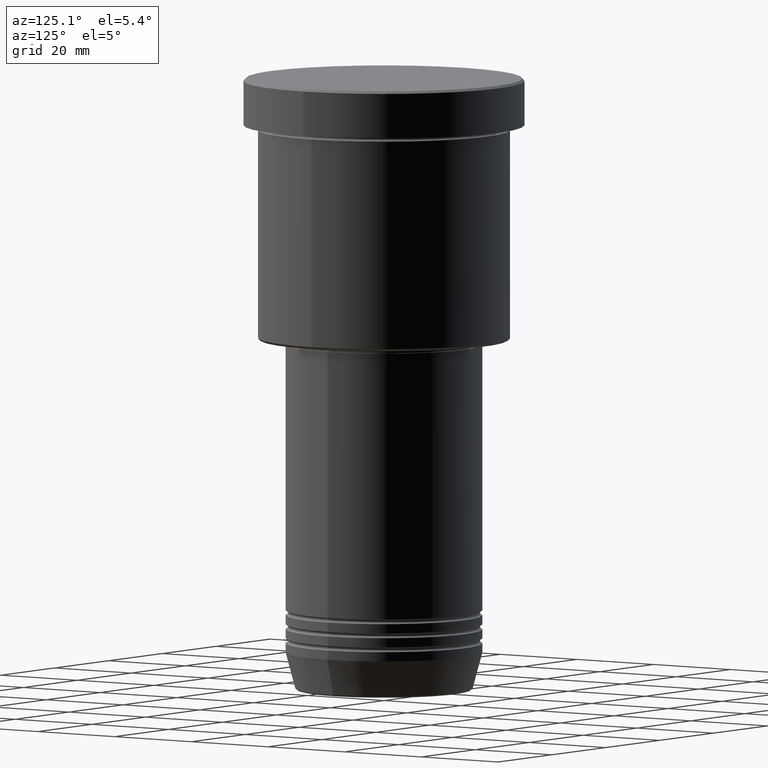
[diagram: clean part render]
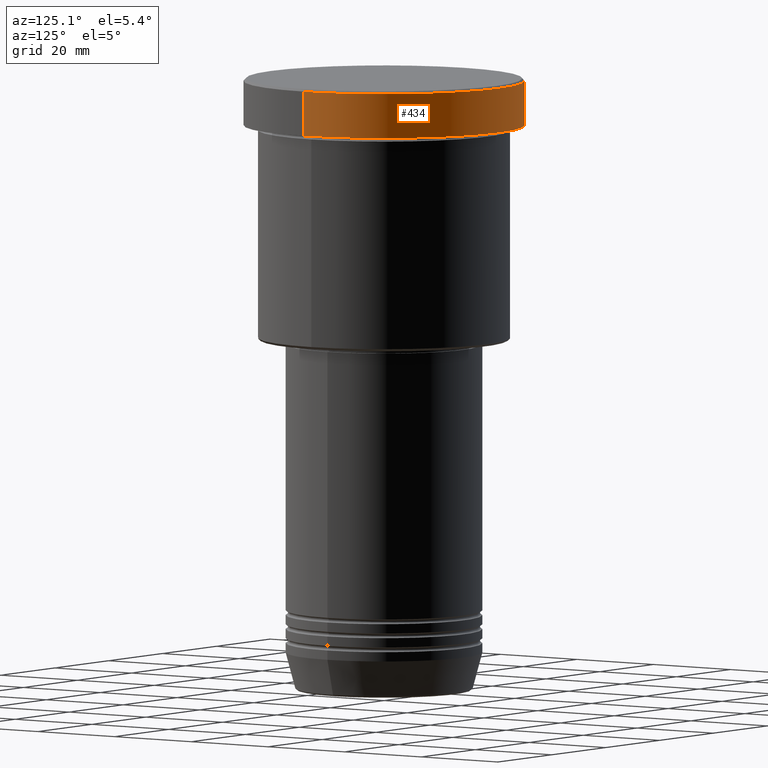
[diagram: same view with one face highlighted and labeled with its STEP entity id]
A machine part, auxiliary view. The second image highlights one B-rep face of the part: STEP entity #434.
In plain terms, the highlighted cylindrical surface (partial cylindrical patch) has radius 30 mm, axis along (-0, -0, 1).
Its self-contained STEP definition (entity closure, byte-faithful):
#10 = ORIENTED_EDGE ( 'NONE', *, *, #907, .F. ) ;
#90 = CARTESIAN_POINT ( 'NONE',  ( 30.00000000000000000, 0.000000000000000000, 0.000000000000000000 ) ) ;
#129 = DIRECTION ( 'NONE',  ( 1.000000000000000000, 0.000000000000000000, 0.000000000000000000 ) ) ;
#152 = CARTESIAN_POINT ( 'NONE',  ( 30.00000000000000000, 0.000000000000000000, -0.4999999999999935052 ) ) ;
#155 = AXIS2_PLACEMENT_3D ( 'NONE', #610, #527, #884 ) ;
#180 = VECTOR ( 'NONE', #526, 1000.000000000000000 ) ;
#187 = VERTEX_POINT ( 'NONE', #1046 ) ;
#225 = EDGE_CURVE ( 'NONE', #999, #1055, #534, .T. ) ;
#275 = VECTOR ( 'NONE', #640, 1000.000000000000000 ) ;
#305 = VERTEX_POINT ( 'NONE', #152 ) ;
#313 = LINE ( 'NONE', #90, #275 ) ;
#324 = CARTESIAN_POINT ( 'NONE',  ( 0.000000000000000000, 0.000000000000000000, -0.4999999999999935052 ) ) ;
#434 = ADVANCED_FACE ( 'NONE', ( #508 ), #590, .T. ) ;
#489 = DIRECTION ( 'NONE',  ( -0.000000000000000000, -0.000000000000000000, 1.000000000000000000 ) ) ;
#508 = FACE_OUTER_BOUND ( 'NONE', #679, .T. ) ;
#515 = LINE ( 'NONE', #890, #180 ) ;
#526 = DIRECTION ( 'NONE',  ( -0.000000000000000000, -0.000000000000000000, 1.000000000000000000 ) ) ;
#527 = DIRECTION ( 'NONE',  ( -0.000000000000000000, -0.000000000000000000, 1.000000000000000000 ) ) ;
#534 = CIRCLE ( 'NONE', #155, 30.00000000000000000 ) ;
#572 = ORIENTED_EDGE ( 'NONE', *, *, #732, .T. ) ;
#590 = CYLINDRICAL_SURFACE ( 'NONE', #614, 30.00000000000000000 ) ;
#610 = CARTESIAN_POINT ( 'NONE',  ( 0.000000000000000000, 0.000000000000000000, -9.999999999999992895 ) ) ;
#614 = AXIS2_PLACEMENT_3D ( 'NONE', #875, #489, #857 ) ;
#616 = AXIS2_PLACEMENT_3D ( 'NONE', #324, #677, #129 ) ;
#640 = DIRECTION ( 'NONE',  ( -0.000000000000000000, -0.000000000000000000, 1.000000000000000000 ) ) ;
#677 = DIRECTION ( 'NONE',  ( 0.000000000000000000, 0.000000000000000000, -1.000000000000000000 ) ) ;
#679 = EDGE_LOOP ( 'NONE', ( #858, #685, #572, #10 ) ) ;
#685 = ORIENTED_EDGE ( 'NONE', *, *, #1108, .T. ) ;
#713 = CIRCLE ( 'NONE', #616, 30.00000000000000000 ) ;
#732 = EDGE_CURVE ( 'NONE', #187, #305, #713, .T. ) ;
#857 = DIRECTION ( 'NONE',  ( 1.000000000000000000, 0.000000000000000000, 0.000000000000000000 ) ) ;
#858 = ORIENTED_EDGE ( 'NONE', *, *, #225, .T. ) ;
#875 = CARTESIAN_POINT ( 'NONE',  ( 0.000000000000000000, 0.000000000000000000, 0.000000000000000000 ) ) ;
#884 = DIRECTION ( 'NONE',  ( 1.000000000000000000, 0.000000000000000000, 0.000000000000000000 ) ) ;
#890 = CARTESIAN_POINT ( 'NONE',  ( -30.00000000000000000, 3.673940397442059178E-15, 0.000000000000000000 ) ) ;
#907 = EDGE_CURVE ( 'NONE', #999, #305, #313, .T. ) ;
#910 = CARTESIAN_POINT ( 'NONE',  ( 30.00000000000000000, 0.000000000000000000, -9.999999999999992895 ) ) ;
#999 = VERTEX_POINT ( 'NONE', #910 ) ;
#1046 = CARTESIAN_POINT ( 'NONE',  ( -30.00000000000000000, 3.673940397442059178E-15, -0.4999999999999935052 ) ) ;
#1052 = CARTESIAN_POINT ( 'NONE',  ( -30.00000000000000000, 3.673940397442059178E-15, -9.999999999999992895 ) ) ;
#1055 = VERTEX_POINT ( 'NONE', #1052 ) ;
#1108 = EDGE_CURVE ( 'NONE', #1055, #187, #515, .T. ) ;